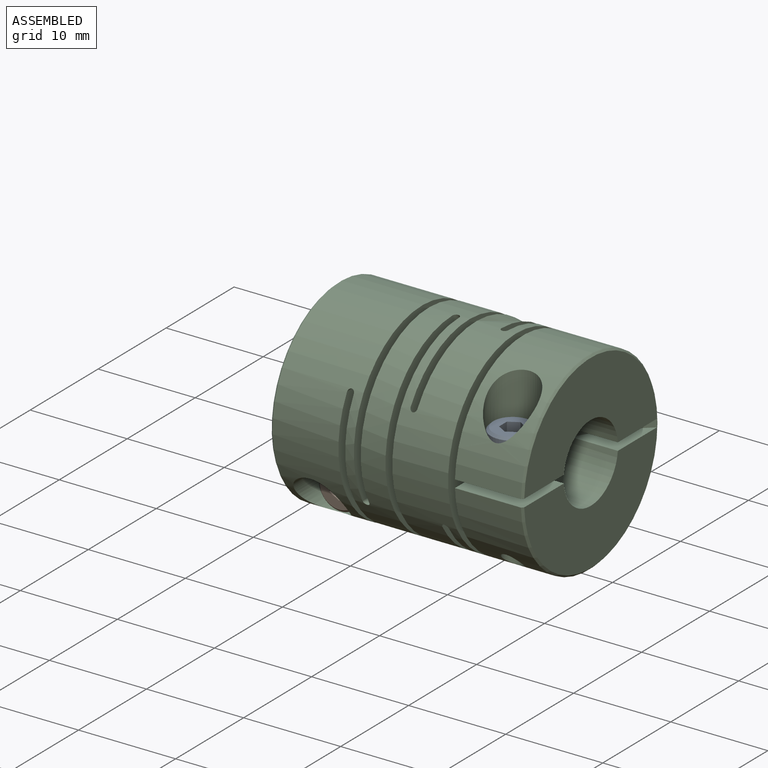
[diagram: assembled view]
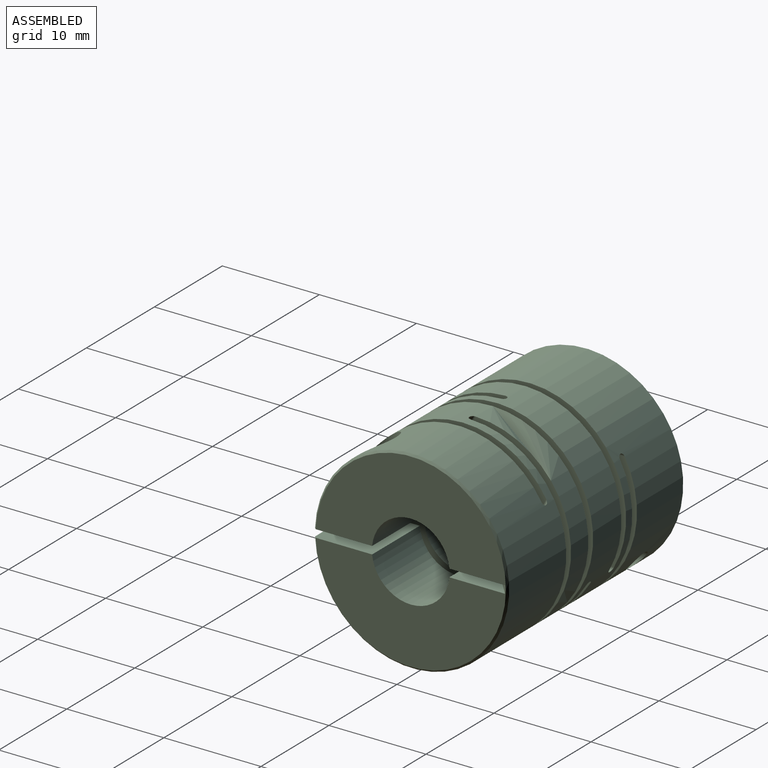
[diagram: assembled view, second angle]
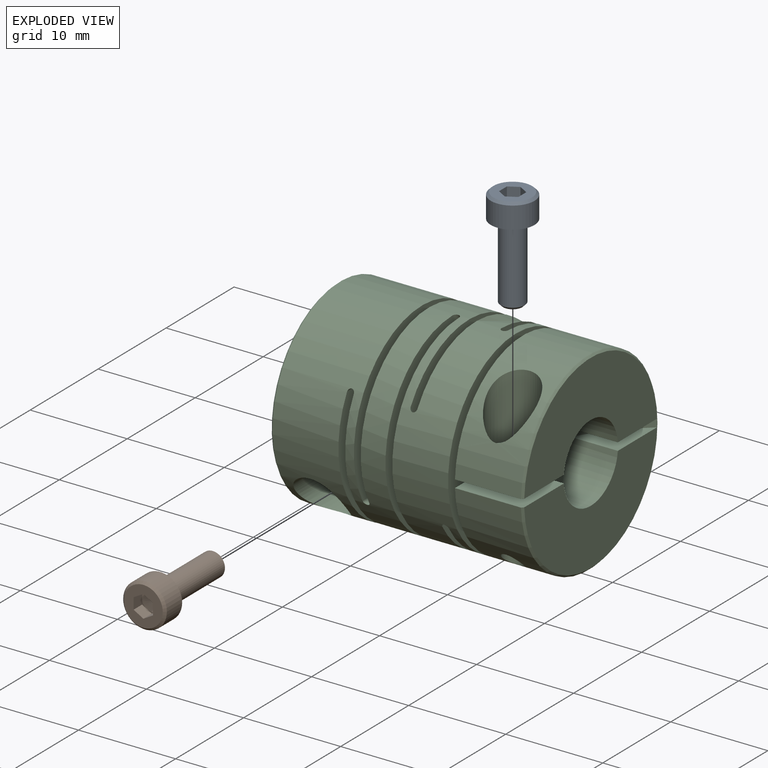
[diagram: exploded view]
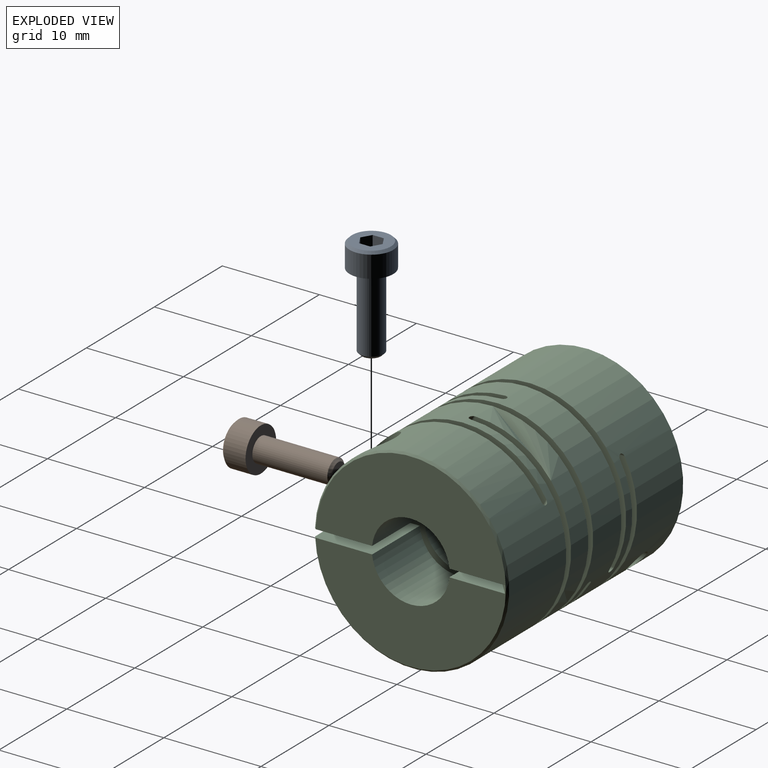
[diagram: exploded view, second angle]
ASSEMBLY  parts=3 mates=2
PART A: 20 faces, bbox 4.5x4.5x10.5 mm
  f0: plane 4x4mm, normal (0,0,1), area 9.1mm2, adj f1,f3,f5,f6,f7,f9,f14
  f1: plane 1.25x1mm, normal (0.5,0.87,0), area 1.4mm2, adj f0,f2,f3,f9,f10
  f2: plane 0.87x0.5mm, normal (0,0,1), area 0.1mm2, adj f1,f3,f15
  f3: plane 1.25x1.15mm, normal (1,0,0), area 1.4mm2, adj f0,f1,f2,f6,f11
  f4: cylinder r=2.25mm len=4.5mm, axis (0,0,1), area 31.8mm2, adj f5,f19
  f5: cone r=2mm half-angle=45deg, axis (0,0,-1), area 4.7mm2, adj f0,f4
  f6: plane 1.25x1mm, normal (0.5,-0.87,0), area 1.4mm2, adj f0,f3,f7,f8,f11
  f7: plane 1.25x1mm, normal (-0.5,-0.87,0), area 1.4mm2, adj f0,f6,f8,f12,f14
  f8: plane 1x0.29mm, normal (0,0,1), area 0.1mm2, adj f6,f7,f15
  f9: plane 1.25x1mm, normal (-0.5,0.87,0), area 1.4mm2, adj f0,f1,f10,f13,f14
  f10: plane 1x0.29mm, normal (0,0,1), area 0.1mm2, adj f1,f9,f15
  f11: plane 0.87x0.5mm, normal (0,0,1), area 0.1mm2, adj f3,f6,f15
  f12: plane 0.87x0.5mm, normal (0,0,1), area 0.1mm2, adj f7,f14,f15
  f13: plane 0.87x0.5mm, normal (0,0,1), area 0.1mm2, adj f9,f14,f15
  f14: plane 1.25x1.15mm, normal (-1,0,0), area 1.4mm2, adj f0,f7,f9,f12,f13
  f15: cone r=1mm half-angle=75deg, axis (0,0,1), area 3.3mm2, adj f2,f8,f10,f11,f12,f13
  f16: plane 1.95x1.95mm, normal (0,0,-1), area 3mm2, adj f17
  f17: cone r=1.25mm half-angle=45deg, axis (0,0,1), area 2.7mm2, adj f16,f18
  f18: cylinder r=1.25mm len=7.72mm, axis (0,0,1), area 60.7mm2, adj f17,f19
  f19: plane 4.5x4.5mm, normal (0,0,-1), area 11mm2, adj f4,f18
PART B: 20 faces, bbox 4.5x10.5x4.5 mm
  f0: plane 4x4mm, normal (0,-1,0), area 9.1mm2, adj f1,f3,f5,f6,f7,f9,f14
  f1: plane 1.25x1mm, normal (0.5,0,0.87), area 1.4mm2, adj f0,f2,f3,f9,f10
  f2: plane 0.87x0.5mm, normal (0,-1,0), area 0.1mm2, adj f1,f3,f15
  f3: plane 1.25x1.15mm, normal (1,0,0), area 1.4mm2, adj f0,f1,f2,f6,f11
  f4: cylinder r=2.25mm len=4.5mm, axis (0,-1,0), area 31.8mm2, adj f5,f19
  f5: cone r=2mm half-angle=45deg, axis (0,1,0), area 4.7mm2, adj f0,f4
  f6: plane 1.25x1mm, normal (0.5,0,-0.87), area 1.4mm2, adj f0,f3,f7,f8,f11
  f7: plane 1.25x1mm, normal (-0.5,0,-0.87), area 1.4mm2, adj f0,f6,f8,f12,f14
  f8: plane 1x0.29mm, normal (0,-1,0), area 0.1mm2, adj f6,f7,f15
  f9: plane 1.25x1mm, normal (-0.5,0,0.87), area 1.4mm2, adj f0,f1,f10,f13,f14
  f10: plane 1x0.29mm, normal (0,-1,0), area 0.1mm2, adj f1,f9,f15
  f11: plane 0.87x0.5mm, normal (0,-1,0), area 0.1mm2, adj f3,f6,f15
  f12: plane 0.87x0.5mm, normal (0,-1,0), area 0.1mm2, adj f7,f14,f15
  f13: plane 0.87x0.5mm, normal (0,-1,0), area 0.1mm2, adj f9,f14,f15
  f14: plane 1.25x1.15mm, normal (-1,0,0), area 1.4mm2, adj f0,f7,f9,f12,f13
  f15: cone r=1mm half-angle=75deg, axis (0,-1,0), area 3.3mm2, adj f2,f8,f10,f11,f12,f13
  f16: plane 1.95x1.95mm, normal (0,1,0), area 3mm2, adj f17
  f17: cone r=1.25mm half-angle=45deg, axis (0,-1,0), area 2.7mm2, adj f16,f18
  f18: cylinder r=1.25mm len=7.72mm, axis (0,-1,0), area 60.7mm2, adj f17,f19
  f19: plane 4.5x4.5mm, normal (0,1,0), area 11mm2, adj f4,f18
PART C: 50 faces, bbox 26x20x20.3 mm
  f0: plane 19.6x19.59mm, normal (-1,0,0), area 259.5mm2, adj f1,f2,f3,f4,f5,f33,f49
  f1: plane 6.56x5.34mm, normal (0,-1,0), area 20.1mm2, adj f0,f2,f3
  f2: cylinder r=20mm len=6.56mm, axis (0,-1,0), area 6.8mm2, adj f0,f1,f3,f49
  f3: cylinder r=3.17mm len=7mm, axis (-1,0,0), area 129.7mm2, adj f0,f1,f2,f5,f33,f42,f49
  f4: cone r=9.8mm half-angle=45deg, axis (1,0,0), area 17.4mm2, adj f0,f5,f12,f13,f33
  f5: plane 7x6.84mm, normal (0,1,0), area 40.8mm2, adj f0,f3,f4,f12,f37,f42
  f6: plane 5.73x4.89mm, normal (0,0,-1), area 15.8mm2, adj f8,f39,f45
  f7: cone r=10mm half-angle=45deg, axis (-1,0,0), area 17.4mm2, adj f9,f10,f12,f14,f45
  f8: cylinder r=20mm len=5.73mm, axis (0,0,1), area 6.1mm2, adj f6,f39,f45,f46
  f9: plane 7x6.01mm, normal (0,0,-1), area 35mm2, adj f7,f14,f22,f39,f45,f47
  f10: plane 7x6.01mm, normal (0,0,1), area 38.9mm2, adj f7,f11,f12,f22,f39,f45
  f11: cylinder r=1.01mm len=7.2mm, axis (0,0,1), area 45.5mm2, adj f10,f12
  f12: cylinder r=10mm len=25.6mm, axis (-1,0,0), area 1075mm2, adj f4,f5,f7,f10,f11,f13,f14,f15
  f13: cylinder r=10mm len=14.84mm, axis (-1,0,0), area 134.2mm2, adj f4,f12,f33,f34,f42
  f14: cylinder r=10mm len=18.74mm, axis (-1,0,0), area 149.5mm2, adj f7,f9,f12,f22,f28,f35
  f15: cylinder r=0.35mm len=17.49mm, axis (0,-1,0), area 19.2mm2, adj f12,f18,f42
  f16: cylinder r=0.35mm len=17.49mm, axis (0,-1,0), area 19.2mm2, adj f12,f17,f20
  f17: plane 20x14.85mm, normal (1,0,0), area 218.5mm2, adj f12,f16,f31
  f18: plane 20x14.85mm, normal (-1,0,0), area 218.5mm2, adj f12,f15,f31
  f19: cylinder r=0.35mm len=15.32mm, axis (0,0.5,-0.87), area 19.2mm2, adj f12,f21,f23
  f20: plane 20x14.85mm, normal (-1,0,0), area 199.9mm2, adj f12,f16,f40
  f21: plane 20x18.57mm, normal (1,0,0), area 199.9mm2, adj f12,f19,f40
  f22: plane 20x18.56mm, normal (-1,0,0), area 195.1mm2, adj f9,f10,f12,f14,f28,f39
  f23: plane 20x18.57mm, normal (-1,0,0), area 199.9mm2, adj f12,f19,f43
  f24: cylinder r=0.35mm len=15.32mm, axis (0,0.5,-0.87), area 19.2mm2, adj f12,f27,f44
  f25: cylinder r=0.35mm len=15.32mm, axis (0,-0.5,-0.87), area 19.2mm2, adj f12,f26,f30
  f26: plane 20x18.57mm, normal (1,0,0), area 199.9mm2, adj f12,f25,f41
  f27: plane 20x18.57mm, normal (-1,0,0), area 199.9mm2, adj f12,f24,f41
  f28: cylinder r=0.35mm len=15.32mm, axis (0,0.5,0.87), area 19mm2, adj f12,f14,f22,f29
  f29: plane 20x18.57mm, normal (1,0,0), area 199.9mm2, adj f12,f28,f38
  f30: plane 20x18.57mm, normal (-1,0,0), area 199.9mm2, adj f12,f25,f38
  f31: cylinder r=3.17mm len=6.35mm, axis (-1,0,0), area 18mm2, adj f17,f18
  f32: cylinder r=2.5mm len=6.77mm, axis (0,1,0), area 75mm2, adj f12,f36
  f33: plane 7x6.84mm, normal (0,-1,0), area 44.7mm2, adj f0,f3,f4,f13,f34,f42
  f34: cylinder r=1.01mm len=7.2mm, axis (0,1,0), area 45.5mm2, adj f13,f33
  f35: cylinder r=2.5mm len=6.77mm, axis (0,0,1), area 76.1mm2, adj f14,f48
  f36: plane 5x5mm, normal (0,-1,0), area 12.6mm2, adj f32,f37
  f37: cylinder r=1.5mm len=3mm, axis (0,1,0), area 18.8mm2, adj f5,f36
  f38: cylinder r=4mm len=8mm, axis (-1,0,0), area 22.6mm2, adj f29,f30
  f39: cylinder r=4mm len=8mm, axis (-1,0,0), area 166.4mm2, adj f6,f8,f9,f10,f22,f45,f46
  f40: cylinder r=4mm len=8mm, axis (-1,0,0), area 64.1mm2, adj f20,f21
  f41: cylinder r=4mm len=8mm, axis (-1,0,0), area 64.1mm2, adj f26,f27
  f42: plane 20x14.84mm, normal (1,0,0), area 213mm2, adj f3,f5,f12,f13,f15,f33
  f43: cylinder r=4mm len=8mm, axis (-1,0,0), area 22.6mm2, adj f23,f44
  f44: plane 20x18.57mm, normal (1,0,0), area 199.9mm2, adj f12,f24,f43
  f45: plane 19.6x19.59mm, normal (1,0,0), area 242.2mm2, adj f6,f7,f8,f9,f10,f39,f46
  f46: plane 5.73x4.89mm, normal (0,0,1), area 15.8mm2, adj f8,f39,f45
  f47: cylinder r=1.5mm len=3mm, axis (0,0,1), area 18.8mm2, adj f9,f48
  f48: plane 5x5mm, normal (0,0,1), area 12.6mm2, adj f35,f47
  f49: plane 6.56x5.34mm, normal (0,1,0), area 20.1mm2, adj f0,f2,f3
PLACE A t=(-8.17,-0.09,-4.31)mm
PLACE B t=(-8.17,-0.09,-4.31)mm
PLACE C t=(-8.17,-0.09,-4.31)mm
MATE fastened A.f4 <-> C.f11  axis (0,0,1) through (14.33,-6.59,-1.91)mm
MATE fastened B.f4 <-> C.f32  axis (0,1,0) through (-4.67,-2.49,-10.81)mm
